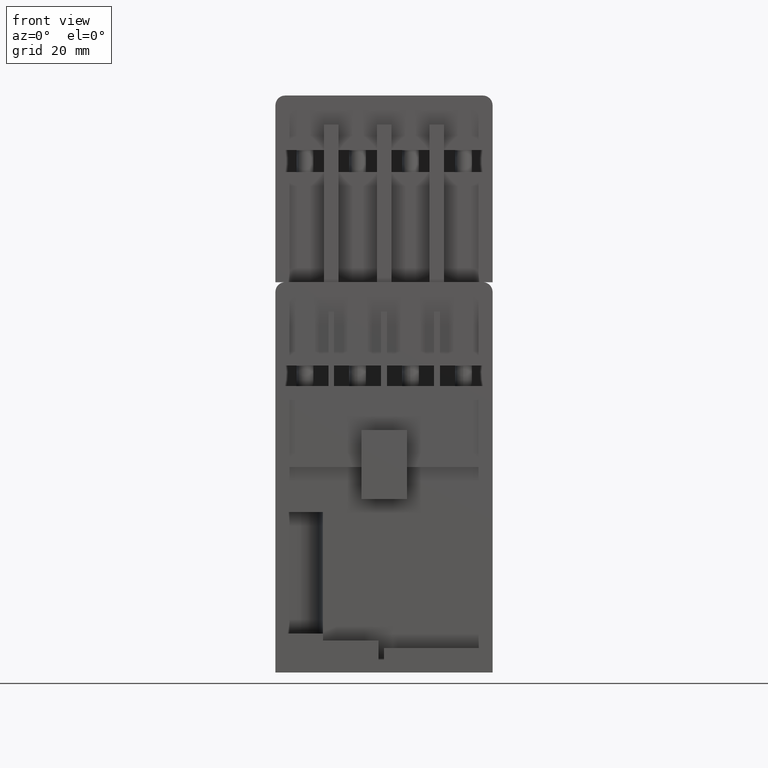
[diagram: clean part render]
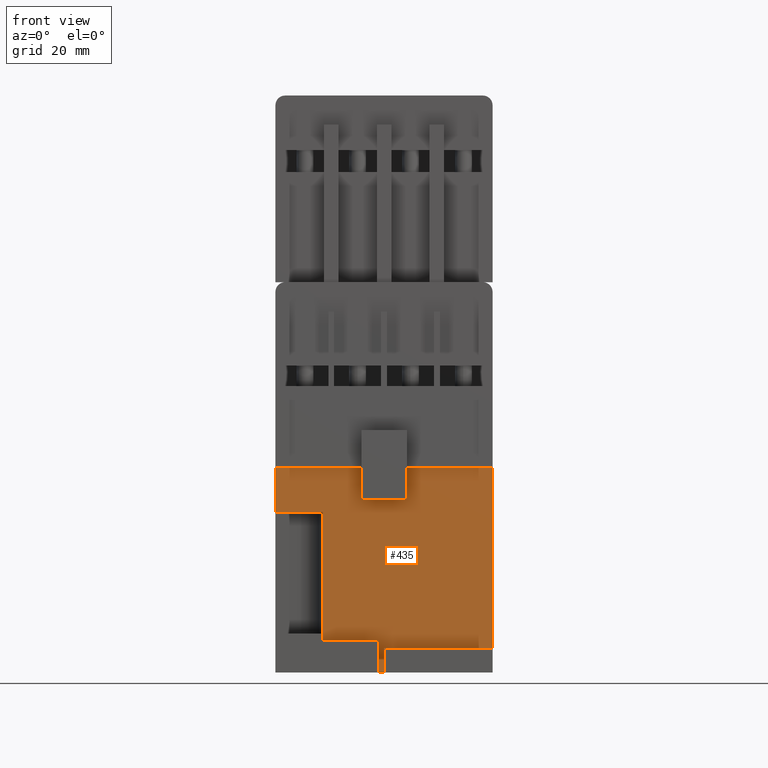
[diagram: same view with one face highlighted and labeled with its STEP entity id]
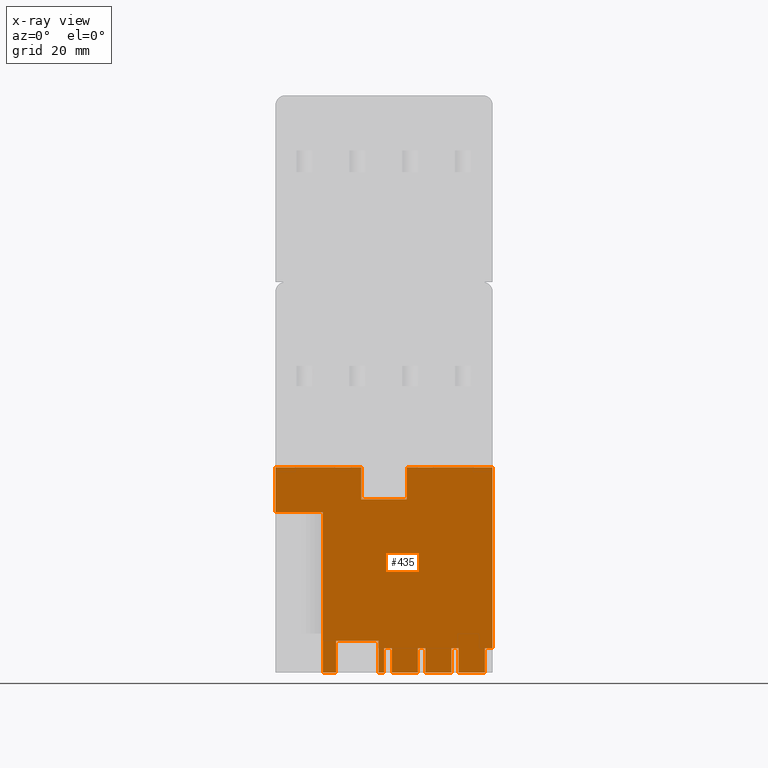
[diagram: x-ray of the same camera — body ghosted, the highlighted face saturated]
A machine part, front view. The second image highlights one B-rep face of the part: STEP entity #435.
The next image is the same camera in x-ray: the body ghosted, the highlighted face saturated — about 0% of this face is hidden behind the body in this view.
In plain terms, the highlighted planar face has unit normal (0, -1, 0).
Its self-contained STEP definition (entity closure, byte-faithful):
#435=ADVANCED_FACE('',(#1601),#1050,.T.);
#1050=PLANE('',#11748);
#1601=FACE_OUTER_BOUND('',#2111,.T.);
#2111=EDGE_LOOP('',(#3303,#3304,#3305,#3306,#3307,#3308,#3309,#3310,#3311,
#3312,#3313,#3314,#3315,#3316,#3317,#3318,#3319,#3320,#3321,#3322,#3323,
#3324,#3325,#3326,#3327,#3328,#3329,#3330,#3331));
#3303=ORIENTED_EDGE('',*,*,#7605,.F.);
#3304=ORIENTED_EDGE('',*,*,#7606,.T.);
#3305=ORIENTED_EDGE('',*,*,#7607,.T.);
#3306=ORIENTED_EDGE('',*,*,#7608,.T.);
#3307=ORIENTED_EDGE('',*,*,#7609,.T.);
#3308=ORIENTED_EDGE('',*,*,#7610,.T.);
#3309=ORIENTED_EDGE('',*,*,#7611,.F.);
#3310=ORIENTED_EDGE('',*,*,#7612,.F.);
#3311=ORIENTED_EDGE('',*,*,#7613,.T.);
#3312=ORIENTED_EDGE('',*,*,#7614,.T.);
#3313=ORIENTED_EDGE('',*,*,#7615,.F.);
#3314=ORIENTED_EDGE('',*,*,#7616,.F.);
#3315=ORIENTED_EDGE('',*,*,#7617,.T.);
#3316=ORIENTED_EDGE('',*,*,#7618,.T.);
#3317=ORIENTED_EDGE('',*,*,#7619,.F.);
#3318=ORIENTED_EDGE('',*,*,#7620,.T.);
#3319=ORIENTED_EDGE('',*,*,#7621,.T.);
#3320=ORIENTED_EDGE('',*,*,#7622,.T.);
#3321=ORIENTED_EDGE('',*,*,#7533,.F.);
#3322=ORIENTED_EDGE('',*,*,#7623,.F.);
#3323=ORIENTED_EDGE('',*,*,#7624,.T.);
#3324=ORIENTED_EDGE('',*,*,#7625,.T.);
#3325=ORIENTED_EDGE('',*,*,#7626,.T.);
#3326=ORIENTED_EDGE('',*,*,#7627,.F.);
#3327=ORIENTED_EDGE('',*,*,#7473,.T.);
#3328=ORIENTED_EDGE('',*,*,#7628,.T.);
#3329=ORIENTED_EDGE('',*,*,#7629,.T.);
#3330=ORIENTED_EDGE('',*,*,#7630,.T.);
#3331=ORIENTED_EDGE('',*,*,#7631,.T.);
#6378=VERTEX_POINT('',#15818);
#6379=VERTEX_POINT('',#15820);
#6437=VERTEX_POINT('',#15938);
#6438=VERTEX_POINT('',#15940);
#6501=VERTEX_POINT('',#16084);
#6502=VERTEX_POINT('',#16085);
#6503=VERTEX_POINT('',#16087);
#6504=VERTEX_POINT('',#16089);
#6505=VERTEX_POINT('',#16091);
#6506=VERTEX_POINT('',#16093);
#6507=VERTEX_POINT('',#16095);
#6508=VERTEX_POINT('',#16097);
#6509=VERTEX_POINT('',#16099);
#6510=VERTEX_POINT('',#16101);
#6511=VERTEX_POINT('',#16103);
#6512=VERTEX_POINT('',#16105);
#6513=VERTEX_POINT('',#16107);
#6514=VERTEX_POINT('',#16109);
#6515=VERTEX_POINT('',#16111);
#6516=VERTEX_POINT('',#16113);
#6517=VERTEX_POINT('',#16115);
#6518=VERTEX_POINT('',#16117);
#6519=VERTEX_POINT('',#16120);
#6520=VERTEX_POINT('',#16122);
#6521=VERTEX_POINT('',#16124);
#6522=VERTEX_POINT('',#16126);
#6523=VERTEX_POINT('',#16129);
#6524=VERTEX_POINT('',#16131);
#6525=VERTEX_POINT('',#16133);
#7473=EDGE_CURVE('',#6379,#6378,#9074,.T.);
#7533=EDGE_CURVE('',#6437,#6438,#9134,.T.);
#7605=EDGE_CURVE('',#6501,#6502,#9206,.T.);
#7606=EDGE_CURVE('',#6501,#6503,#9207,.T.);
#7607=EDGE_CURVE('',#6503,#6504,#9208,.T.);
#7608=EDGE_CURVE('',#6504,#6505,#9209,.T.);
#7609=EDGE_CURVE('',#6505,#6506,#9210,.T.);
#7610=EDGE_CURVE('',#6506,#6507,#9211,.T.);
#7611=EDGE_CURVE('',#6508,#6507,#9212,.T.);
#7612=EDGE_CURVE('',#6509,#6508,#9213,.T.);
#7613=EDGE_CURVE('',#6509,#6510,#9214,.T.);
#7614=EDGE_CURVE('',#6510,#6511,#9215,.T.);
#7615=EDGE_CURVE('',#6512,#6511,#9216,.T.);
#7616=EDGE_CURVE('',#6513,#6512,#9217,.T.);
#7617=EDGE_CURVE('',#6513,#6514,#9218,.T.);
#7618=EDGE_CURVE('',#6514,#6515,#9219,.T.);
#7619=EDGE_CURVE('',#6516,#6515,#9220,.T.);
#7620=EDGE_CURVE('',#6516,#6517,#9221,.T.);
#7621=EDGE_CURVE('',#6517,#6518,#9222,.T.);
#7622=EDGE_CURVE('',#6518,#6438,#9223,.T.);
#7623=EDGE_CURVE('',#6519,#6437,#9224,.T.);
#7624=EDGE_CURVE('',#6519,#6520,#9225,.T.);
#7625=EDGE_CURVE('',#6520,#6521,#9226,.T.);
#7626=EDGE_CURVE('',#6521,#6522,#9227,.T.);
#7627=EDGE_CURVE('',#6379,#6522,#9228,.T.);
#7628=EDGE_CURVE('',#6378,#6523,#9229,.T.);
#7629=EDGE_CURVE('',#6523,#6524,#9230,.T.);
#7630=EDGE_CURVE('',#6524,#6525,#9231,.T.);
#7631=EDGE_CURVE('',#6525,#6502,#9232,.T.);
#9074=LINE('',#15819,#10425);
#9134=LINE('',#15939,#10485);
#9206=LINE('',#16083,#10557);
#9207=LINE('',#16086,#10558);
#9208=LINE('',#16088,#10559);
#9209=LINE('',#16090,#10560);
#9210=LINE('',#16092,#10561);
#9211=LINE('',#16094,#10562);
#9212=LINE('',#16096,#10563);
#9213=LINE('',#16098,#10564);
#9214=LINE('',#16100,#10565);
#9215=LINE('',#16102,#10566);
#9216=LINE('',#16104,#10567);
#9217=LINE('',#16106,#10568);
#9218=LINE('',#16108,#10569);
#9219=LINE('',#16110,#10570);
#9220=LINE('',#16112,#10571);
#9221=LINE('',#16114,#10572);
#9222=LINE('',#16116,#10573);
#9223=LINE('',#16118,#10574);
#9224=LINE('',#16119,#10575);
#9225=LINE('',#16121,#10576);
#9226=LINE('',#16123,#10577);
#9227=LINE('',#16125,#10578);
#9228=LINE('',#16127,#10579);
#9229=LINE('',#16128,#10580);
#9230=LINE('',#16130,#10581);
#9231=LINE('',#16132,#10582);
#9232=LINE('',#16134,#10583);
#10425=VECTOR('',#12674,1.);
#10485=VECTOR('',#12736,1.);
#10557=VECTOR('',#12826,1.);
#10558=VECTOR('',#12827,1.);
#10559=VECTOR('',#12828,1.);
#10560=VECTOR('',#12829,1.);
#10561=VECTOR('',#12830,1.);
#10562=VECTOR('',#12831,1.);
#10563=VECTOR('',#12832,1.);
#10564=VECTOR('',#12833,1.);
#10565=VECTOR('',#12834,1.);
#10566=VECTOR('',#12835,1.);
#10567=VECTOR('',#12836,1.);
#10568=VECTOR('',#12837,1.);
#10569=VECTOR('',#12838,1.);
#10570=VECTOR('',#12839,1.);
#10571=VECTOR('',#12840,1.);
#10572=VECTOR('',#12841,1.);
#10573=VECTOR('',#12842,1.);
#10574=VECTOR('',#12843,1.);
#10575=VECTOR('',#12844,1.);
#10576=VECTOR('',#12845,1.);
#10577=VECTOR('',#12846,1.);
#10578=VECTOR('',#12847,1.);
#10579=VECTOR('',#12848,1.);
#10580=VECTOR('',#12849,1.);
#10581=VECTOR('',#12850,1.);
#10582=VECTOR('',#12851,1.);
#10583=VECTOR('',#12852,1.);
#11748=AXIS2_PLACEMENT_3D('',#16135,#12853,#12854);
#12674=DIRECTION('',(0.,0.,-1.));
#12736=DIRECTION('',(0.,0.,-1.));
#12826=DIRECTION('',(-1.52616086220918E-015,1.51283832902358E-030,-1.));
#12827=DIRECTION('',(1.,0.,0.));
#12828=DIRECTION('',(-1.52616086220918E-015,1.51283832902358E-030,-1.));
#12829=DIRECTION('',(1.,0.,0.));
#12830=DIRECTION('',(0.,0.,1.));
#12831=DIRECTION('',(1.,0.,0.));
#12832=DIRECTION('',(0.,0.,1.));
#12833=DIRECTION('',(-1.,0.,0.));
#12834=DIRECTION('',(0.,0.,1.));
#12835=DIRECTION('',(1.,0.,0.));
#12836=DIRECTION('',(0.,0.,1.));
#12837=DIRECTION('',(-1.,0.,0.));
#12838=DIRECTION('',(0.,0.,1.));
#12839=DIRECTION('',(1.,0.,0.));
#12840=DIRECTION('',(0.,0.,1.));
#12841=DIRECTION('',(1.,0.,0.));
#12842=DIRECTION('',(0.,0.,1.));
#12843=DIRECTION('',(1.,0.,0.));
#12844=DIRECTION('',(1.,0.,0.));
#12845=DIRECTION('',(2.42618667968784E-016,0.,-1.));
#12846=DIRECTION('',(-1.,0.,0.));
#12847=DIRECTION('',(-4.24582668945373E-016,0.,1.));
#12848=DIRECTION('',(1.,0.,0.));
#12849=DIRECTION('',(1.,0.,0.));
#12850=DIRECTION('',(-1.52616086220918E-015,1.51283832902358E-030,-1.));
#12851=DIRECTION('',(-1.52616086220918E-015,1.51283832902358E-030,-1.));
#12852=DIRECTION('',(1.,0.,0.));
#12853=DIRECTION('',(0.,-1.,0.));
#12854=DIRECTION('',(0.,0.,-1.));
#15818=CARTESIAN_POINT('',(-22.3999999999999,-31.3,28.1));
#15819=CARTESIAN_POINT('',(-22.4,-31.3,37.3000000000161));
#15820=CARTESIAN_POINT('',(-22.4,-31.3,37.3000000000161));
#15938=CARTESIAN_POINT('',(22.4,-31.3,37.3000000000161));
#15939=CARTESIAN_POINT('',(22.4,-31.3,37.3000000000161));
#15940=CARTESIAN_POINT('',(22.4,-31.3,6.93889390390723E-015));
#16083=CARTESIAN_POINT('',(-9.89999999999999,-31.3,1.6));
#16084=CARTESIAN_POINT('',(-9.89999999999999,-31.3,1.6));
#16085=CARTESIAN_POINT('',(-9.9,-31.3,-5.));
#16086=CARTESIAN_POINT('',(-9.89999999999999,-31.3,1.6));
#16087=CARTESIAN_POINT('',(-1.09999999999999,-31.3,1.6));
#16088=CARTESIAN_POINT('',(-1.09999999999999,-31.3,1.6));
#16089=CARTESIAN_POINT('',(-1.1,-31.3,-5.));
#16090=CARTESIAN_POINT('',(-22.4,-31.3,-5.));
#16091=CARTESIAN_POINT('',(0.,-31.3,-5.));
#16092=CARTESIAN_POINT('',(0.,-31.3,-5.5));
#16093=CARTESIAN_POINT('',(0.,-31.3,6.93889390390723E-015));
#16094=CARTESIAN_POINT('',(-22.4,-31.3,6.93889390390723E-015));
#16095=CARTESIAN_POINT('',(1.6,-31.3,6.93889390390723E-015));
#16096=CARTESIAN_POINT('',(1.6,-31.3,-5.5));
#16097=CARTESIAN_POINT('',(1.6,-31.3,-5.));
#16098=CARTESIAN_POINT('',(7.,-31.3,-5.));
#16099=CARTESIAN_POINT('',(7.,-31.3,-5.));
#16100=CARTESIAN_POINT('',(7.,-31.3,-5.50000000000001));
#16101=CARTESIAN_POINT('',(7.,-31.3,6.93889390390723E-015));
#16102=CARTESIAN_POINT('',(-22.4,-31.3,6.93889390390723E-015));
#16103=CARTESIAN_POINT('',(8.5,-31.3,6.93889390390723E-015));
#16104=CARTESIAN_POINT('',(8.5,-31.3,-5.5));
#16105=CARTESIAN_POINT('',(8.5,-31.3,-5.));
#16106=CARTESIAN_POINT('',(13.9,-31.3,-5.));
#16107=CARTESIAN_POINT('',(13.9,-31.3,-5.));
#16108=CARTESIAN_POINT('',(13.9,-31.3,-5.50000000000001));
#16109=CARTESIAN_POINT('',(13.9,-31.3,6.93889390390723E-015));
#16110=CARTESIAN_POINT('',(-22.4,-31.3,6.93889390390723E-015));
#16111=CARTESIAN_POINT('',(15.4,-31.3,0.));
#16112=CARTESIAN_POINT('',(15.4,-31.3,-5.50000000000001));
#16113=CARTESIAN_POINT('',(15.4,-31.3,-5.));
#16114=CARTESIAN_POINT('',(15.4,-31.3,-5.));
#16115=CARTESIAN_POINT('',(20.8,-31.3,-5.));
#16116=CARTESIAN_POINT('',(20.8,-31.3,-5.50000000000001));
#16117=CARTESIAN_POINT('',(20.8,-31.3,6.93889390390723E-015));
#16118=CARTESIAN_POINT('',(-22.4,-31.3,6.93889390390723E-015));
#16119=CARTESIAN_POINT('',(-22.4,-31.3,37.3000000000161));
#16120=CARTESIAN_POINT('',(4.7,-31.3,37.3000000000161));
#16121=CARTESIAN_POINT('',(4.7,-31.3,45.));
#16122=CARTESIAN_POINT('',(4.7,-31.3,30.7));
#16123=CARTESIAN_POINT('',(4.7,-31.3,30.7));
#16124=CARTESIAN_POINT('',(-4.7,-31.3,30.7));
#16125=CARTESIAN_POINT('',(-4.7,-31.3,30.7));
#16126=CARTESIAN_POINT('',(-4.7,-31.3,37.3000000000161));
#16127=CARTESIAN_POINT('',(-22.4,-31.3,37.3000000000161));
#16128=CARTESIAN_POINT('',(-22.3999999999999,-31.3,28.1));
#16129=CARTESIAN_POINT('',(-12.6,-31.3,28.1));
#16130=CARTESIAN_POINT('',(-12.6,-31.3,28.1));
#16131=CARTESIAN_POINT('',(-12.6,-31.3,3.));
#16132=CARTESIAN_POINT('',(-12.6,-31.3,28.1));
#16133=CARTESIAN_POINT('',(-12.6,-31.3,-5.));
#16134=CARTESIAN_POINT('',(-22.4,-31.3,-5.));
#16135=CARTESIAN_POINT('',(-22.4,-31.3,37.3000000000161));